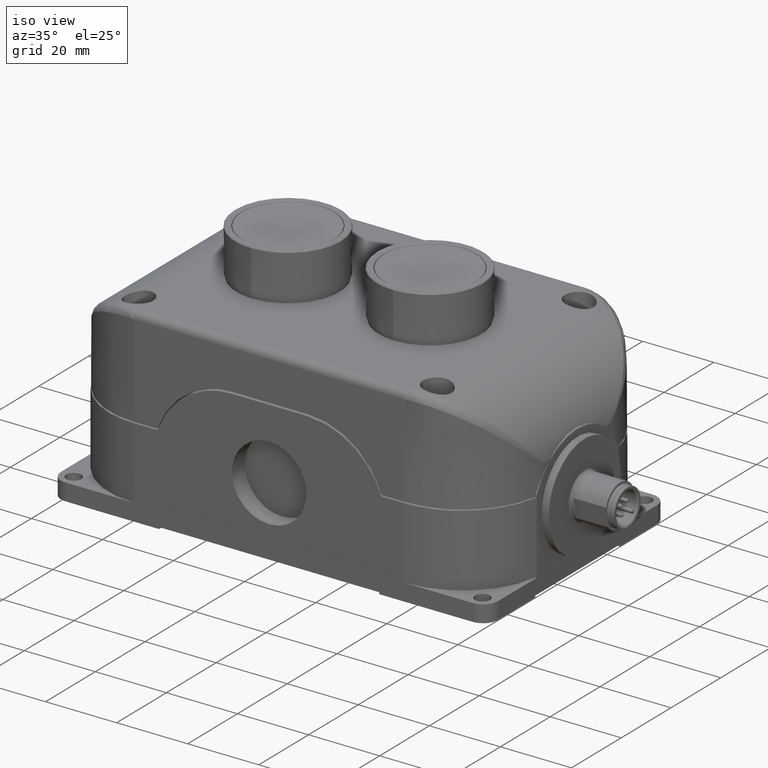
[diagram: clean part render]
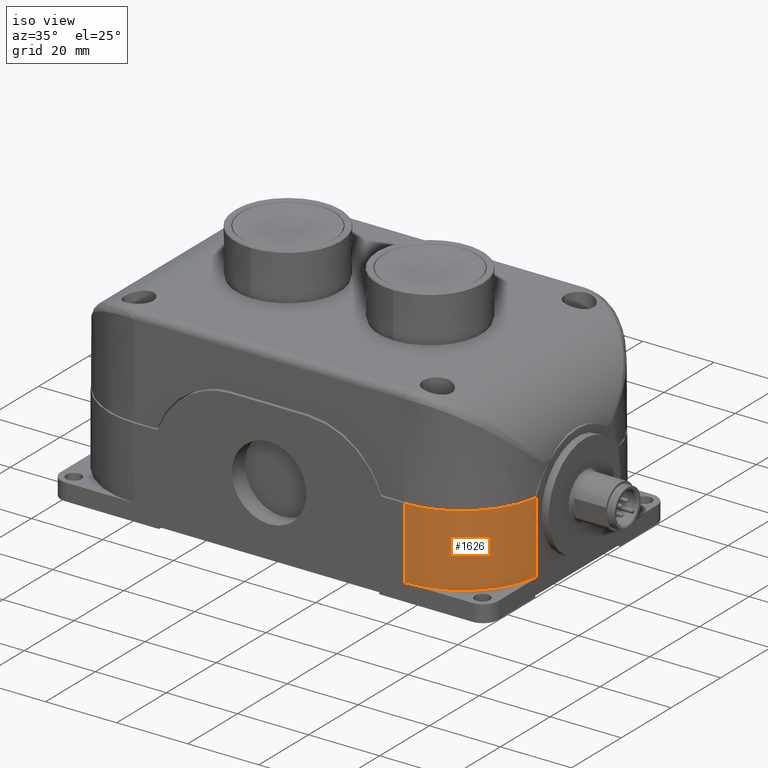
[diagram: same view with one face highlighted and labeled with its STEP entity id]
A machine part, iso view. The second image highlights one B-rep face of the part: STEP entity #1626.
In plain terms, the highlighted cylindrical surface (partial cylindrical patch) has radius 23.6193 mm, axis along (-0, -0, -1).
Its self-contained STEP definition (entity closure, byte-faithful):
#109 =( BOUNDED_CURVE ( )  B_SPLINE_CURVE ( 3, ( #10450, #3535, #1255, #8649 ),
 .UNSPECIFIED., .F., .T. ) 
 B_SPLINE_CURVE_WITH_KNOTS ( ( 4, 4 ),
 ( 4.879918347325247652, 6.283185307179586232 ),
 .UNSPECIFIED. ) 
 CURVE ( )  GEOMETRIC_REPRESENTATION_ITEM ( )  RATIONAL_B_SPLINE_CURVE ( ( 1.000000000000000000, 0.8425259004628169457, 0.8425259004628169457, 1.000000000000000000 ) ) 
 REPRESENTATION_ITEM ( '' )  );
#253 = CARTESIAN_POINT ( 'NONE',  ( 4.834196448583387706, -2.070300332105031060, 0.1889763779527558474 ) ) ;
#331 = AXIS2_PLACEMENT_3D ( 'NONE', #12183, #19455, #21648 ) ;
#1255 = CARTESIAN_POINT ( 'NONE',  ( 4.392255066840701438, -2.845136086824478827, 0.9849268262883080771 ) ) ;
#1626 = ADVANCED_FACE ( 'NONE', ( #2969 ), #11935, .T. ) ;
#2969 = FACE_OUTER_BOUND ( 'NONE', #8835, .T. ) ;
#3535 = CARTESIAN_POINT ( 'NONE',  ( 4.755003010626587923, -2.538583392403327199, 0.9867102976925400393 ) ) ;
#4205 = CARTESIAN_POINT ( 'NONE',  ( 3.917322834645668550, -2.845136086824479271, 1.586614173228346525 ) ) ;
#5067 = EDGE_CURVE ( 'NONE', #11144, #20695, #14464, .T. ) ;
#5107 = EDGE_CURVE ( 'NONE', #20695, #18392, #109, .T. ) ;
#5216 = CARTESIAN_POINT ( 'NONE',  ( 3.917322834645668550, -1.915243743866817727, 0.1889763779527558474 ) ) ;
#6967 = ORIENTED_EDGE ( 'NONE', *, *, #13667, .T. ) ;
#7311 = CARTESIAN_POINT ( 'NONE',  ( 4.834196448583387706, -2.070300332105031060, 1.586614173228346525 ) ) ;
#8649 = CARTESIAN_POINT ( 'NONE',  ( 3.917322834645668550, -2.845136086824479271, 0.9849268262883080771 ) ) ;
#8835 = EDGE_LOOP ( 'NONE', ( #6967, #11259, #22923, #15148 ) ) ;
#10450 = CARTESIAN_POINT ( 'NONE',  ( 4.834196448583387706, -2.070300332105031060, 0.9894346888407089535 ) ) ;
#11144 = VERTEX_POINT ( 'NONE', #253 ) ;
#11259 = ORIENTED_EDGE ( 'NONE', *, *, #5067, .T. ) ;
#11935 = CYLINDRICAL_SURFACE ( 'NONE', #331, 0.9298923429576609889 ) ;
#12183 = CARTESIAN_POINT ( 'NONE',  ( 3.917322834645668550, -1.915243743866817727, 1.586614173228346525 ) ) ;
#13527 = DIRECTION ( 'NONE',  ( -0.000000000000000000, -0.000000000000000000, -1.000000000000000000 ) ) ;
#13667 = EDGE_CURVE ( 'NONE', #18561, #11144, #14097, .T. ) ;
#14009 = LINE ( 'NONE', #4205, #14171 ) ;
#14097 = CIRCLE ( 'NONE', #18740, 0.9298923429576609889 ) ;
#14171 = VECTOR ( 'NONE', #13527, 39.37007874015748143 ) ;
#14464 = LINE ( 'NONE', #7311, #20877 ) ;
#15148 = ORIENTED_EDGE ( 'NONE', *, *, #15549, .T. ) ;
#15549 = EDGE_CURVE ( 'NONE', #18392, #18561, #14009, .T. ) ;
#18149 = CARTESIAN_POINT ( 'NONE',  ( 3.917322834645668550, -2.845136086824479271, 0.9849268262883080771 ) ) ;
#18392 = VERTEX_POINT ( 'NONE', #18149 ) ;
#18561 = VERTEX_POINT ( 'NONE', #22381 ) ;
#18740 = AXIS2_PLACEMENT_3D ( 'NONE', #5216, #23981, #23519 ) ;
#19455 = DIRECTION ( 'NONE',  ( -0.000000000000000000, -0.000000000000000000, -1.000000000000000000 ) ) ;
#20038 = DIRECTION ( 'NONE',  ( 0.000000000000000000, 0.000000000000000000, 1.000000000000000000 ) ) ;
#20695 = VERTEX_POINT ( 'NONE', #21793 ) ;
#20877 = VECTOR ( 'NONE', #20038, 39.37007874015748143 ) ;
#21648 = DIRECTION ( 'NONE',  ( -1.000000000000000000, 0.000000000000000000, 0.000000000000000000 ) ) ;
#21793 = CARTESIAN_POINT ( 'NONE',  ( 4.834196448583387706, -2.070300332105031060, 0.9894346888407089535 ) ) ;
#22381 = CARTESIAN_POINT ( 'NONE',  ( 3.917322834645668550, -2.845136086824479271, 0.1889763779527558474 ) ) ;
#22923 = ORIENTED_EDGE ( 'NONE', *, *, #5107, .T. ) ;
#23519 = DIRECTION ( 'NONE',  ( 1.000000000000000000, 0.000000000000000000, 0.000000000000000000 ) ) ;
#23981 = DIRECTION ( 'NONE',  ( 0.000000000000000000, 0.000000000000000000, 1.000000000000000000 ) ) ;